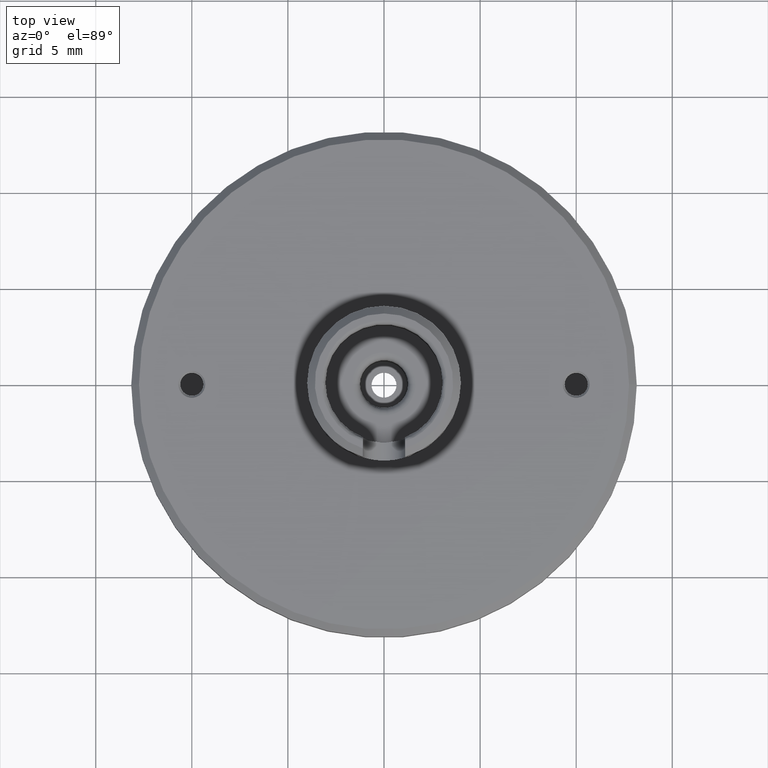
[diagram: clean part render]
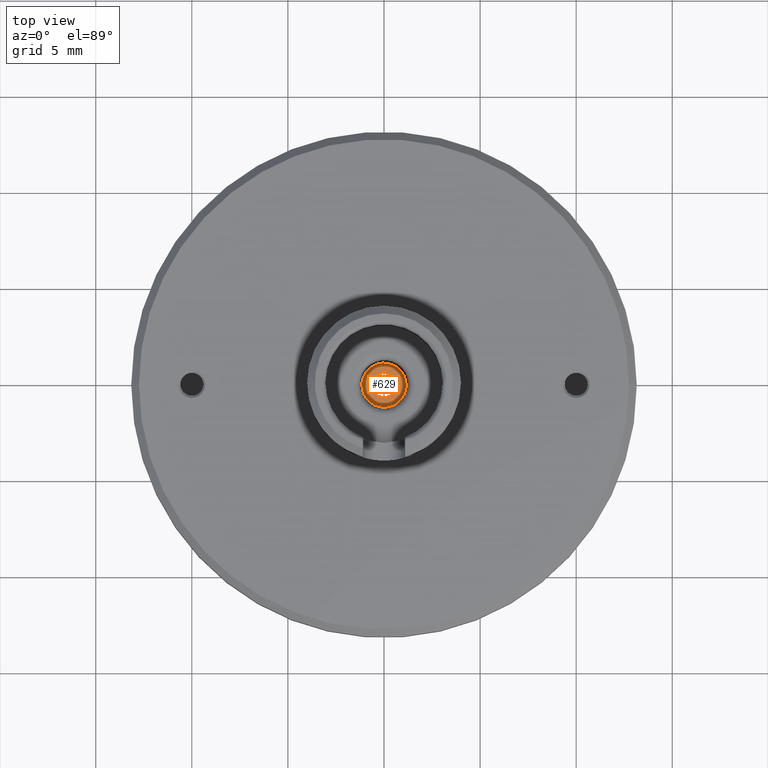
[diagram: same view with one face highlighted and labeled with its STEP entity id]
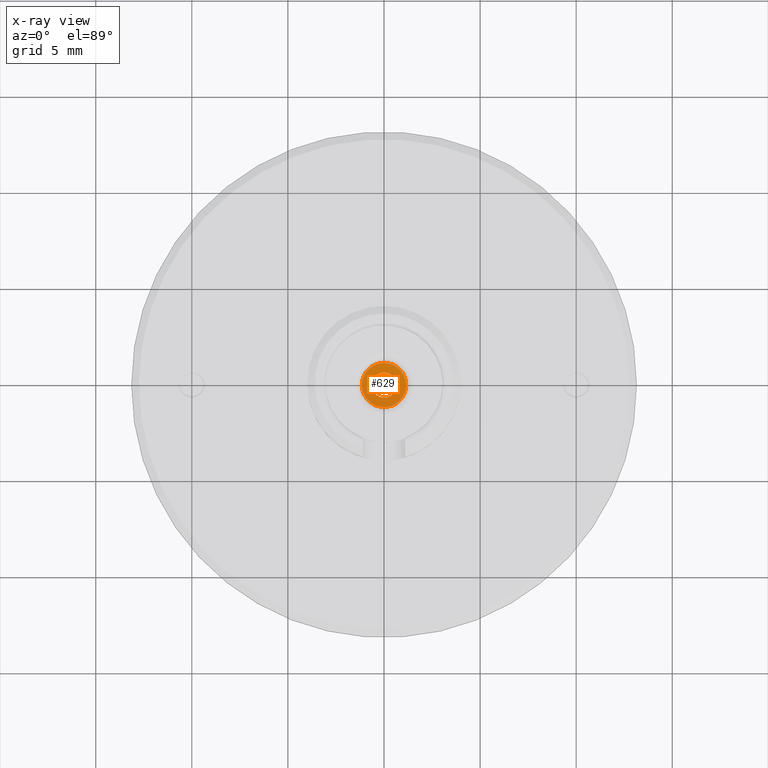
[diagram: x-ray of the same camera — body ghosted, the highlighted face saturated]
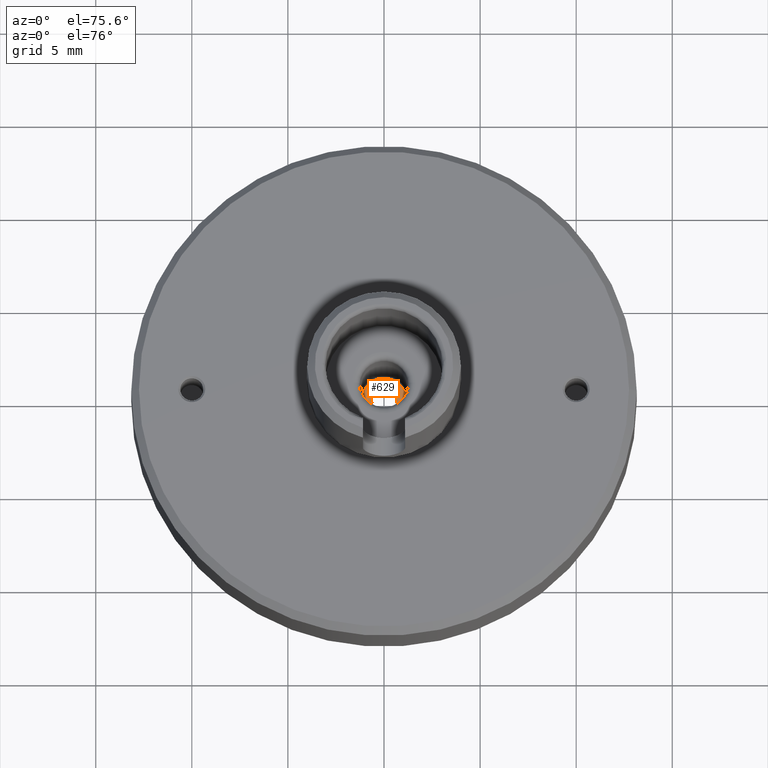
[diagram: same view with one face highlighted and labeled with its STEP entity id]
A machine part, top view. The second image highlights one B-rep face of the part: STEP entity #629.
The next image is the same camera in x-ray: the body ghosted, the highlighted face saturated — about 0% of this face is hidden behind the body in this view.
A second angle (auxiliary view) of the same face is appended — the face is thin or edge-on in the first view.
In plain terms, the highlighted planar face has unit normal (0, 0, 1).
Its self-contained STEP definition (entity closure, byte-faithful):
#6 = CARTESIAN_POINT ( 'NONE',  ( 0.4576907330712320920, -1.055267264884256040, 0.9000000000000002442 ) ) ;
#15 = CARTESIAN_POINT ( 'NONE',  ( -0.8959085997876049534, -0.7221521377055729607, 0.9000000000000002442 ) ) ;
#35 = ORIENTED_EDGE ( 'NONE', *, *, #612, .F. ) ;
#38 = AXIS2_PLACEMENT_3D ( 'NONE', #1307, #1316, #507 ) ;
#71 = CARTESIAN_POINT ( 'NONE',  ( 1.106429659907786522, 0.3136559222368871525, 0.9000000000000001332 ) ) ;
#80 = CARTESIAN_POINT ( 'NONE',  ( -0.04773475471286119792, 1.150022829666832891, 0.9000000000000001332 ) ) ;
#87 = CARTESIAN_POINT ( 'NONE',  ( 0.9884052336127213678, 0.5897794831845035723, 0.9000000000000002442 ) ) ;
#94 = CARTESIAN_POINT ( 'NONE',  ( -0.8296374410005249445, 0.7981772895968547443, 0.8999999999999999112 ) ) ;
#100 = CARTESIAN_POINT ( 'NONE',  ( -0.1895508499803758018, 1.135290654755878315, 0.9000000000000002442 ) ) ;
#109 = CARTESIAN_POINT ( 'NONE',  ( -1.107773437146541529, -0.3088274726955794747, 0.9000000000000002442 ) ) ;
#117 = CARTESIAN_POINT ( 'NONE',  ( 1.064867251393174508, -0.4368568936009156745, 0.9000000000000000222 ) ) ;
#126 = CARTESIAN_POINT ( 'NONE',  ( -1.046984756014528894, -0.4848170886900667331, 0.9000000000000001332 ) ) ;
#133 = CARTESIAN_POINT ( 'NONE',  ( 0.1895508499805458047, -1.135290654755863438, 0.9000000000000002442 ) ) ;
#142 = CARTESIAN_POINT ( 'NONE',  ( -0.6169205075658240611, -0.9707774528062439456, 0.9000000000000003553 ) ) ;
#152 = VERTEX_POINT ( 'NONE', #355 ) ;
#195 = CARTESIAN_POINT ( 'NONE',  ( -0.7864464436814544435, 0.8400347721380465593, 0.9000000000000000222 ) ) ;
#209 = CARTESIAN_POINT ( 'NONE',  ( -0.4997809806249513542, 1.035976330225095943, 0.9000000000000001332 ) ) ;
#216 = CARTESIAN_POINT ( 'NONE',  ( -0.7410233531398328077, 0.8796401481792762711, 0.9000000000000002442 ) ) ;
#220 = CARTESIAN_POINT ( 'NONE',  ( 1.111367187145394508, 0.2956313190008975633, 0.9000000000000003553 ) ) ;
#223 = ORIENTED_EDGE ( 'NONE', *, *, #362, .T. ) ;
#231 = CARTESIAN_POINT ( 'NONE',  ( 0.8761207747333640272, -0.7454023735904827808, 0.9000000000000001332 ) ) ;
#238 = CARTESIAN_POINT ( 'NONE',  ( 0.04773475471297473210, -1.150022829666823343, 0.9000000000000003553 ) ) ;
#249 = CARTESIAN_POINT ( 'NONE',  ( 1.149999999633068315, -0.1096977517493623044, 0.9000000000000001332 ) ) ;
#257 = CARTESIAN_POINT ( 'NONE',  ( -1.106429659907785412, -0.3136559222368859312, 0.9000000000000003553 ) ) ;
#267 = CARTESIAN_POINT ( 'NONE',  ( -0.8151962426491259350, -0.8114009701668399854, 0.9000000000000002442 ) ) ;
#318 = EDGE_CURVE ( 'NONE', #435, #152, #1302, .T. ) ;
#323 = CARTESIAN_POINT ( 'NONE',  ( 0.09546950942572303422, 1.149954340670910957, 0.9000000000000001332 ) ) ;
#339 = CARTESIAN_POINT ( 'NONE',  ( 0.5615927658004286060, 1.003805386001101585, 0.9000000000000003553 ) ) ;
#344 = CARTESIAN_POINT ( 'NONE',  ( 0.9405093774881497781, 0.6618312867538912458, 0.9000000000000003553 ) ) ;
#350 = CARTESIAN_POINT ( 'NONE',  ( 1.046984756014505136, 0.4848170886900485810, 0.9000000000000001332 ) ) ;
#351 = PLANE ( 'NONE',  #1461 ) ;
#355 = CARTESIAN_POINT ( 'NONE',  ( -1.149999999588777522, 0.000000000000000000, 0.8999999997754433156 ) ) ;
#359 = EDGE_CURVE ( 'NONE', #1388, #1526, #1602, .T. ) ;
#362 = EDGE_CURVE ( 'NONE', #152, #435, #434, .T. ) ;
#374 = CARTESIAN_POINT ( 'NONE',  ( 1.099015186973072211, -0.3387216093354318835, 0.9000000000000001332 ) ) ;
#383 = CIRCLE ( 'NONE', #1500, 0.6500000000000001332 ) ;
#387 = CARTESIAN_POINT ( 'NONE',  ( -0.09546950942594936707, -1.149954340670929165, 0.9000000000000000222 ) ) ;
#394 = CARTESIAN_POINT ( 'NONE',  ( -0.5615927658004115086, -1.003805386001108912, 0.9000000000000003553 ) ) ;
#403 = CARTESIAN_POINT ( 'NONE',  ( 0.9147824836700608753, -0.6969501371183527416, 0.9000000000000001332 ) ) ;
#434 = B_SPLINE_CURVE_WITH_KNOTS ( 'NONE', 3,
 ( #1554, #1423, #787, #500, #1590, #517, #109, #257, #630, #126, #1572, #1159, #1582, #929, #776, #15, #647, #267, #1679, #1050, #759, #1179, #142, #899, #394, #1451, #794, #1040, #387, #238, #1444, #133, #662, #654, #1188, #6, #766, #938, #1698, #1197, #1298, #638, #525, #532, #1056, #231, #1322, #1066, #403, #1289, #1687, #117, #1169, #1563, #374, #907, #1434, #249, #967 ),
 .UNSPECIFIED., .F., .F.,
 ( 4, 1, 1, 1, 2, 2, 1, 1, 1, 2, 2, 1, 2, 2, 1, 2, 2, 2, 2, 2, 2, 1, 2, 2, 1, 2, 2, 1, 1, 2, 2, 1, 1, 1, 2, 2, 4 ),
 ( 0.000000000000000000, 0.06250000000000001388, 0.09375000000000000000, 0.1093750000000000278, 0.1171875000000000416, 0.1250000000000000555, 0.1875000000000001665, 0.2187500000000001665, 0.2343750000000001943, 0.2421875000000001943, 0.2500000000000002220, 0.2812500000000002220, 0.2968750000000002220, 0.3125000000000002220, 0.3437500000000002776, 0.3593750000000002220, 0.3750000000000002220, 0.4374999999999998890, 0.4999999999999995559, 0.5312499999999993339, 0.5624999999999991118, 0.5937499999999988898, 0.6093749999999987788, 0.6249999999999986677, 0.6562499999999985567, 0.6718749999999984457, 0.6874999999999983347, 0.7187499999999981126, 0.7343749999999980016, 0.7421874999999980016, 0.7499999999999980016, 0.8124999999999983347, 0.8437499999999985567, 0.8593749999999986677, 0.8671874999999986677, 0.8749999999999986677, 1.000000000000000000 ),
 .UNSPECIFIED. ) ;
#435 = VERTEX_POINT ( 'NONE', #1216 ) ;
#459 = CARTESIAN_POINT ( 'NONE',  ( 0.7233013550594228347, 0.8951453044805833814, 0.9000000000000003553 ) ) ;
#466 = CARTESIAN_POINT ( 'NONE',  ( 0.6717805947506084729, 0.9352089564904649821, 0.9000000000000001332 ) ) ;
#474 = CARTESIAN_POINT ( 'NONE',  ( 0.8959085997875911866, 0.7221521377056085988, 0.9000000000000002442 ) ) ;
#476 = EDGE_LOOP ( 'NONE', ( #1631, #35 ) ) ;
#481 = CARTESIAN_POINT ( 'NONE',  ( -0.9617401279974618911, 0.6343989030616322689, 0.9000000000000001332 ) ) ;
#483 = FACE_OUTER_BOUND ( 'NONE', #1677, .T. ) ;
#500 = CARTESIAN_POINT ( 'NONE',  ( -1.127479166306920577, -0.2294064111655245708, 0.9000000000000000222 ) ) ;
#507 = DIRECTION ( 'NONE',  ( 1.000000000000000000, 0.000000000000000000, 0.000000000000000000 ) ) ;
#517 = CARTESIAN_POINT ( 'NONE',  ( -1.111367187145395174, -0.2956313190008763581, 0.9000000000000003553 ) ) ;
#525 = CARTESIAN_POINT ( 'NONE',  ( 0.7410233531398128237, -0.8796401481792940347, 0.8999999999999999112 ) ) ;
#532 = CARTESIAN_POINT ( 'NONE',  ( 0.7864464436814950776, -0.8400347721380110322, 0.9000000000000001332 ) ) ;
#592 = CARTESIAN_POINT ( 'NONE',  ( -0.5796876444037921683, 0.9941888524987536613, 0.8999999999999999112 ) ) ;
#600 = CARTESIAN_POINT ( 'NONE',  ( 0.9260228496861709901, 0.6819619655747423126, 0.9000000000000003553 ) ) ;
#606 = CARTESIAN_POINT ( 'NONE',  ( 1.107773437146540640, 0.3088274726955903549, 0.8999999999999999112 ) ) ;
#612 = EDGE_CURVE ( 'NONE', #1526, #1388, #383, .T. ) ;
#613 = CARTESIAN_POINT ( 'NONE',  ( -1.093770840041284442, 0.3553088693800546816, 0.9000000000000001332 ) ) ;
#617 = CARTESIAN_POINT ( 'NONE',  ( -0.9077420899383753516, 0.7061107629104433903, 0.9000000000000004663 ) ) ;
#629 = ADVANCED_FACE ( 'NONE', ( #1142, #483 ), #351, .T. ) ;
#630 = CARTESIAN_POINT ( 'NONE',  ( -1.084562717567428614, -0.3887526221087579392, 0.9000000000000003553 ) ) ;
#638 = CARTESIAN_POINT ( 'NONE',  ( 0.7226779377773410173, -0.8948195569759105350, 0.9000000000000000222 ) ) ;
#647 = CARTESIAN_POINT ( 'NONE',  ( -0.8573605978002072359, -0.7683210355046433682, 0.9000000000000000222 ) ) ;
#654 = CARTESIAN_POINT ( 'NONE',  ( 0.3279462015934819230, -1.103242502803968739, 0.9000000000000003553 ) ) ;
#662 = CARTESIAN_POINT ( 'NONE',  ( 0.2382076443797207232, -1.125988266429758022, 0.8999999999999999112 ) ) ;
#719 = CARTESIAN_POINT ( 'NONE',  ( 1.116578124643732739, 0.2758134620690017580, 0.9000000000000000222 ) ) ;
#726 = CARTESIAN_POINT ( 'NONE',  ( -0.3938606039771017642, 1.082224153661547783, 0.9000000000000003553 ) ) ;
#733 = CARTESIAN_POINT ( 'NONE',  ( -0.9147824836700781947, 0.6969501371183255412, 0.9000000000000000222 ) ) ;
#739 = CARTESIAN_POINT ( 'NONE',  ( -0.4576907330711057487, 1.055267264884313549, 0.9000000000000003553 ) ) ;
#746 = CARTESIAN_POINT ( 'NONE',  ( 0.6169205075657112625, 0.9707774528063073394, 0.9000000000000003553 ) ) ;
#759 = CARTESIAN_POINT ( 'NONE',  ( -0.7233013550595052132, -0.8951453044805373072, 0.9000000000000003553 ) ) ;
#766 = CARTESIAN_POINT ( 'NONE',  ( 0.4997809806250321230, -1.035976330225059305, 0.9000000000000003553 ) ) ;
#776 = CARTESIAN_POINT ( 'NONE',  ( -0.9260228496861666603, -0.6819619655747508613, 0.9000000000000001332 ) ) ;
#787 = CARTESIAN_POINT ( 'NONE',  ( -1.144249999634903148, -0.1359307704426964969, 0.9000000000000003553 ) ) ;
#794 = CARTESIAN_POINT ( 'NONE',  ( -0.3755977581340244620, -1.091071648342246903, 0.9000000000000001332 ) ) ;
#854 = CARTESIAN_POINT ( 'NONE',  ( 1.144249999634902037, 0.1359307704427764052, 0.8999999999999999112 ) ) ;
#855 = CARTESIAN_POINT ( 'NONE',  ( -1.163799999999999946, -1.163799999999999946, 0.9000000000000001332 ) ) ;
#860 = CARTESIAN_POINT ( 'NONE',  ( -1.099015186973039349, 0.3387216093354847302, 0.9000000000000003553 ) ) ;
#869 = CARTESIAN_POINT ( 'NONE',  ( -0.7226779377773212554, 0.8948195569759265222, 0.9000000000000001332 ) ) ;
#875 = CARTESIAN_POINT ( 'NONE',  ( 1.149999999633067649, 0.05467472596727022266, 0.9000000000000002442 ) ) ;
#883 = CARTESIAN_POINT ( 'NONE',  ( -1.149999999633067871, 0.1096977517497718796, 0.9000000000000000222 ) ) ;
#884 = DIRECTION ( 'NONE',  ( 0.000000000000000000, 0.000000000000000000, 1.000000000000000000 ) ) ;
#899 = CARTESIAN_POINT ( 'NONE',  ( -0.5796050434700553700, -0.9934908601959303587, 0.9000000000000002442 ) ) ;
#907 = CARTESIAN_POINT ( 'NONE',  ( 1.102083332981689923, -0.3285605571827763804, 0.9000000000000001332 ) ) ;
#929 = CARTESIAN_POINT ( 'NONE',  ( -0.9303862829478116714, -0.6759791506677365058, 0.9000000000000000222 ) ) ;
#938 = CARTESIAN_POINT ( 'NONE',  ( 0.5219208834214351667, -1.024964397282063455, 0.9000000000000000222 ) ) ;
#967 = CARTESIAN_POINT ( 'NONE',  ( 1.149999999588777522, 0.000000000000000000, 0.8999999997754435377 ) ) ;
#984 = CARTESIAN_POINT ( 'NONE',  ( -1.085644785386601585, 0.3800554101564221354, 0.9000000000000002442 ) ) ;
#994 = CARTESIAN_POINT ( 'NONE',  ( 1.149999999588777522, 0.000000000000000000, 0.8999999997754435377 ) ) ;
#995 = DIRECTION ( 'NONE',  ( 0.000000000000000000, -0.000000000000000000, 1.000000000000000000 ) ) ;
#1000 = CARTESIAN_POINT ( 'NONE',  ( 0.4595112888760934378, 1.058307867767032562, 0.9000000000000003553 ) ) ;
#1009 = CARTESIAN_POINT ( 'NONE',  ( -0.6881865465452338126, 0.9216279235953488413, 0.9000000000000000222 ) ) ;
#1016 = CARTESIAN_POINT ( 'NONE',  ( 0.9303862829478091179, 0.6759791506677342854, 0.9000000000000002442 ) ) ;
#1040 = CARTESIAN_POINT ( 'NONE',  ( -0.1905560878391784896, -1.138159120891479859, 0.9000000000000003553 ) ) ;
#1050 = CARTESIAN_POINT ( 'NONE',  ( -0.7725958974508080335, -0.8520848820080315633, 0.9000000000000003553 ) ) ;
#1056 = CARTESIAN_POINT ( 'NONE',  ( 0.8296374410005963318, -0.7981772895967923498, 0.9000000000000002442 ) ) ;
#1066 = CARTESIAN_POINT ( 'NONE',  ( 0.9077420899383940034, -0.7061107629104266259, 0.9000000000000001332 ) ) ;
#1107 = ORIENTED_EDGE ( 'NONE', *, *, #318, .T. ) ;
#1120 = CARTESIAN_POINT ( 'NONE',  ( -1.016045224208379505, 0.5466980803571087622, 0.9000000000000003553 ) ) ;
#1127 = CARTESIAN_POINT ( 'NONE',  ( -0.09519187565150907804, 1.147085526550765344, 0.9000000000000001332 ) ) ;
#1133 = CARTESIAN_POINT ( 'NONE',  ( 1.127479166306920355, 0.2294064111655843563, 0.9000000000000002442 ) ) ;
#1141 = CARTESIAN_POINT ( 'NONE',  ( -0.8761207747333109586, 0.7454023735905300763, 0.9000000000000003553 ) ) ;
#1142 = FACE_BOUND ( 'NONE', #476, .T. ) ;
#1148 = CARTESIAN_POINT ( 'NONE',  ( 0.9554308305976481064, 0.6404824763024643541, 0.9000000000000001332 ) ) ;
#1159 = CARTESIAN_POINT ( 'NONE',  ( -0.9554308305976584315, -0.6404824763024720147, 0.8999999999999998002 ) ) ;
#1169 = CARTESIAN_POINT ( 'NONE',  ( 1.085644785386707500, -0.3800554101562558795, 0.9000000000000002442 ) ) ;
#1179 = CARTESIAN_POINT ( 'NONE',  ( -0.6717805947507523578, -0.9352089564903842689, 0.9000000000000002442 ) ) ;
#1188 = CARTESIAN_POINT ( 'NONE',  ( 0.3938606039772621359, -1.082224153661475397, 0.9000000000000002442 ) ) ;
#1197 = CARTESIAN_POINT ( 'NONE',  ( 0.6354445140081046439, -0.9602676393334771410, 0.9000000000000003553 ) ) ;
#1216 = CARTESIAN_POINT ( 'NONE',  ( 1.149999999588777522, 0.000000000000000000, 0.8999999997754435377 ) ) ;
#1252 = CARTESIAN_POINT ( 'NONE',  ( 0.7725958974508490007, 0.8520848820080082486, 0.9000000000000003553 ) ) ;
#1258 = CARTESIAN_POINT ( 'NONE',  ( 0.8151962426491063951, 0.8114009701668886132, 0.9000000000000002442 ) ) ;
#1265 = CARTESIAN_POINT ( 'NONE',  ( -1.064867251392992431, 0.4368568936012002246, 0.9000000000000001332 ) ) ;
#1271 = CARTESIAN_POINT ( 'NONE',  ( -1.102083332981689923, 0.3285605571827509008, 0.9000000000000001332 ) ) ;
#1272 = CARTESIAN_POINT ( 'NONE',  ( 0.000000000000000000, 0.000000000000000000, 0.9000000000000001332 ) ) ;
#1278 = CARTESIAN_POINT ( 'NONE',  ( 0.1905560878391964474, 1.138159120891460985, 0.9000000000000003553 ) ) ;
#1289 = CARTESIAN_POINT ( 'NONE',  ( 0.9617401279976013351, -0.6343989030614154423, 0.9000000000000001332 ) ) ;
#1298 = CARTESIAN_POINT ( 'NONE',  ( 0.6881865465452641217, -0.9216279235953235283, 0.9000000000000001332 ) ) ;
#1302 = B_SPLINE_CURVE_WITH_KNOTS ( 'NONE', 3,
 ( #994, #875, #854, #1133, #719, #220, #606, #71, #1656, #350, #87, #1148, #344, #1016, #600, #474, #1649, #1258, #1530, #1252, #459, #466, #746, #1376, #339, #1000, #1643, #1278, #323, #80, #1127, #100, #1524, #1398, #726, #739, #209, #1539, #592, #1508, #1009, #869, #216, #195, #94, #1141, #1392, #617, #733, #481, #1120, #1265, #984, #613, #860, #1271, #1663, #883, #1403 ),
 .UNSPECIFIED., .F., .F.,
 ( 4, 1, 1, 1, 2, 2, 1, 1, 1, 2, 2, 1, 2, 2, 1, 2, 2, 2, 2, 2, 2, 1, 2, 2, 1, 2, 2, 1, 1, 2, 2, 1, 1, 1, 2, 2, 4 ),
 ( 0.000000000000000000, 0.06250000000000073552, 0.09375000000000108247, 0.1093750000000012074, 0.1171875000000012629, 0.1250000000000013323, 0.1875000000000017486, 0.2187500000000019429, 0.2343750000000019706, 0.2421875000000019706, 0.2500000000000019429, 0.2812500000000018874, 0.2968750000000018319, 0.3125000000000017764, 0.3437500000000017764, 0.3593750000000017208, 0.3750000000000016653, 0.4375000000000014433, 0.5000000000000011102, 0.5312500000000009992, 0.5625000000000009992, 0.5937500000000007772, 0.6093750000000007772, 0.6250000000000006661, 0.6562500000000007772, 0.6718750000000007772, 0.6875000000000008882, 0.7187500000000009992, 0.7343750000000011102, 0.7421875000000012212, 0.7500000000000012212, 0.8125000000000008882, 0.8437500000000006661, 0.8593750000000006661, 0.8671875000000006661, 0.8750000000000006661, 1.000000000000000000 ),
 .UNSPECIFIED. ) ;
#1307 = CARTESIAN_POINT ( 'NONE',  ( 0.000000000000000000, 0.000000000000000000, 0.9000000000000001332 ) ) ;
#1316 = DIRECTION ( 'NONE',  ( 0.000000000000000000, -0.000000000000000000, 1.000000000000000000 ) ) ;
#1322 = CARTESIAN_POINT ( 'NONE',  ( 0.8952051685175110851, -0.7219400125074461050, 0.8999999999999999112 ) ) ;
#1376 = CARTESIAN_POINT ( 'NONE',  ( 0.5796050434699834275, 0.9934908601959709928, 0.9000000000000003553 ) ) ;
#1388 = VERTEX_POINT ( 'NONE', #1487 ) ;
#1392 = CARTESIAN_POINT ( 'NONE',  ( -0.8952051685174771123, 0.7219400125074761920, 0.9000000000000000222 ) ) ;
#1398 = CARTESIAN_POINT ( 'NONE',  ( -0.3279462015933899410, 1.103242502804010261, 0.9000000000000002442 ) ) ;
#1403 = CARTESIAN_POINT ( 'NONE',  ( -1.149999999588777522, 0.000000000000000000, 0.8999999997754433156 ) ) ;
#1404 = DIRECTION ( 'NONE',  ( 1.000000000000000000, 0.000000000000000000, 0.000000000000000000 ) ) ;
#1423 = CARTESIAN_POINT ( 'NONE',  ( -1.149999999633068315, -0.05467472596722458555, 0.9000000000000002442 ) ) ;
#1434 = CARTESIAN_POINT ( 'NONE',  ( 1.134666666304627203, -0.2170310850828388316, 0.9000000000000002442 ) ) ;
#1444 = CARTESIAN_POINT ( 'NONE',  ( 0.09519187565167838705, -1.147085526550750911, 0.9000000000000001332 ) ) ;
#1451 = CARTESIAN_POINT ( 'NONE',  ( -0.4595112888761613279, -1.058307867767001254, 0.9000000000000003553 ) ) ;
#1461 = AXIS2_PLACEMENT_3D ( 'NONE', #855, #884, #1404 ) ;
#1466 = CARTESIAN_POINT ( 'NONE',  ( -0.6500000000000001332, 7.960204194457797942E-17, 0.9000000000000001332 ) ) ;
#1487 = CARTESIAN_POINT ( 'NONE',  ( 0.6500000000000001332, 0.000000000000000000, 0.9000000000000001332 ) ) ;
#1500 = AXIS2_PLACEMENT_3D ( 'NONE', #1272, #995, #1670 ) ;
#1508 = CARTESIAN_POINT ( 'NONE',  ( -0.6354445140080661192, 0.9602676393335098926, 0.9000000000000000222 ) ) ;
#1524 = CARTESIAN_POINT ( 'NONE',  ( -0.2382076443798126775, 1.125988266429716278, 0.9000000000000002442 ) ) ;
#1526 = VERTEX_POINT ( 'NONE', #1466 ) ;
#1530 = CARTESIAN_POINT ( 'NONE',  ( 0.7862830385120179733, 0.8394344903556969495, 0.9000000000000003553 ) ) ;
#1539 = CARTESIAN_POINT ( 'NONE',  ( -0.5219208834214457138, 1.024964397282054351, 0.9000000000000000222 ) ) ;
#1554 = CARTESIAN_POINT ( 'NONE',  ( -1.149999999588777522, 0.000000000000000000, 0.8999999997754433156 ) ) ;
#1563 = CARTESIAN_POINT ( 'NONE',  ( 1.093770840041347947, -0.3553088693799543729, 0.9000000000000000222 ) ) ;
#1572 = CARTESIAN_POINT ( 'NONE',  ( -0.9884052336127389093, -0.5897794831845167840, 0.9000000000000001332 ) ) ;
#1582 = CARTESIAN_POINT ( 'NONE',  ( -0.9405093774881559954, -0.6618312867538960198, 0.9000000000000002442 ) ) ;
#1590 = CARTESIAN_POINT ( 'NONE',  ( -1.116578124643732073, -0.2758134620689666749, 0.9000000000000001332 ) ) ;
#1602 = CIRCLE ( 'NONE', #38, 0.6500000000000001332 ) ;
#1631 = ORIENTED_EDGE ( 'NONE', *, *, #359, .F. ) ;
#1643 = CARTESIAN_POINT ( 'NONE',  ( 0.3755977581340066984, 1.091071648342265776, 0.9000000000000001332 ) ) ;
#1649 = CARTESIAN_POINT ( 'NONE',  ( 0.8573605978001831440, 0.7683210355047055407, 0.9000000000000002442 ) ) ;
#1656 = CARTESIAN_POINT ( 'NONE',  ( 1.084562717567414625, 0.3887526221087473921, 0.9000000000000001332 ) ) ;
#1663 = CARTESIAN_POINT ( 'NONE',  ( -1.134666666304626981, 0.2170310850832484206, 0.9000000000000002442 ) ) ;
#1670 = DIRECTION ( 'NONE',  ( 1.000000000000000000, 0.000000000000000000, 0.000000000000000000 ) ) ;
#1677 = EDGE_LOOP ( 'NONE', ( #1107, #223 ) ) ;
#1679 = CARTESIAN_POINT ( 'NONE',  ( -0.7862830385120305188, -0.8394344903556654192, 0.9000000000000003553 ) ) ;
#1687 = CARTESIAN_POINT ( 'NONE',  ( 1.016045224208623310, -0.5466980803567285108, 0.9000000000000000222 ) ) ;
#1698 = CARTESIAN_POINT ( 'NONE',  ( 0.5796876444038139287, -0.9941888524987356757, 0.9000000000000003553 ) ) ;